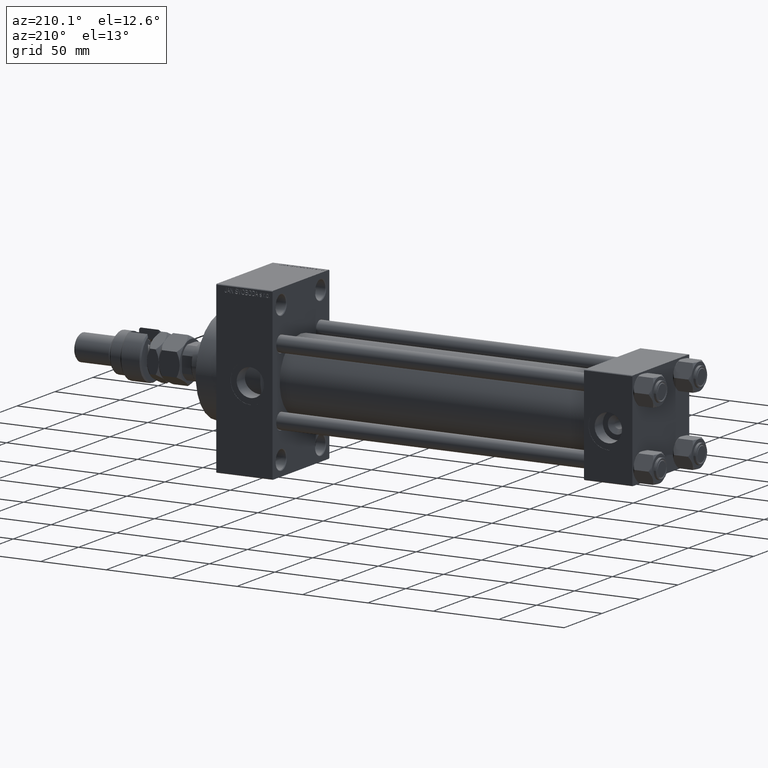
[diagram: clean part render]
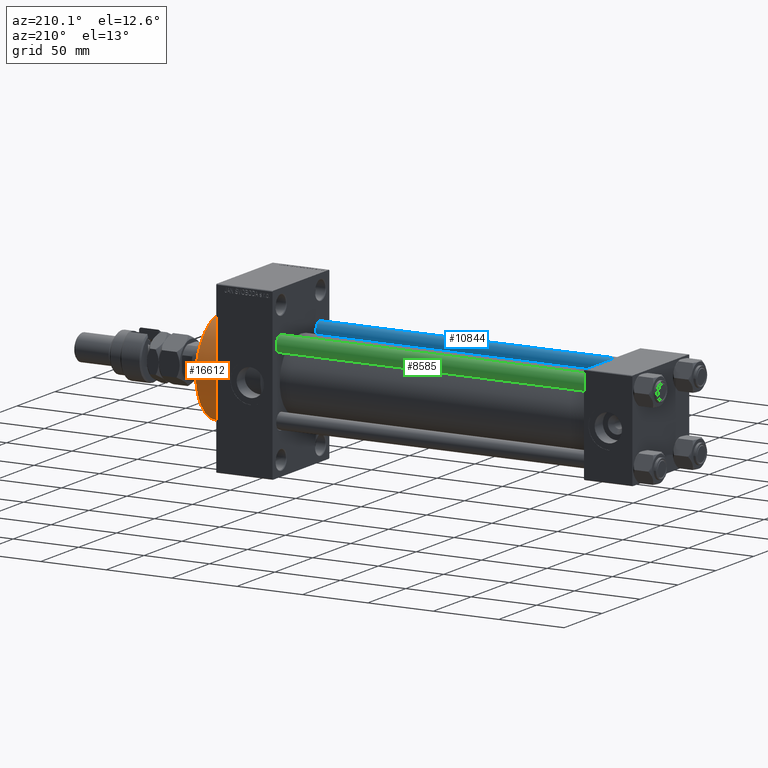
[diagram: same view with three faces highlighted in distinct colors, each labeled with its STEP entity id]
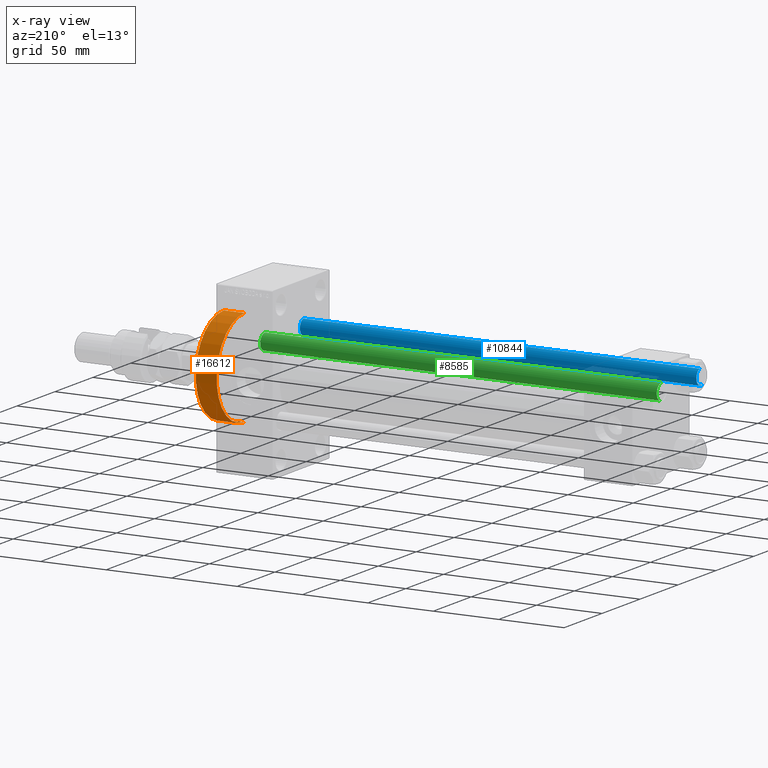
[diagram: x-ray of the same camera — body ghosted, the three highlighted faces saturated]
A machine part, auxiliary view with three faces highlighted in distinct colors.
The next image is the same camera in x-ray (body ghosted, the three faces saturated) — at least one of them is partly hidden behind the body in this view.
Their STEP definitions:

[orange] entity #16612 — the highlighted cylindrical surface (partial cylindrical patch) has radius 37 mm, axis along (-1, -0, -0).
#1893 = CARTESIAN_POINT ( 'NONE',  ( 317.9999999999999432, 0.000000000000000000, 37.00000000000000000 ) ) ;
#2523 = VECTOR ( 'NONE', #41551, 1000.000000000000000 ) ;
#3509 = ORIENTED_EDGE ( 'NONE', *, *, #35283, .F. ) ;
#3634 = DIRECTION ( 'NONE',  ( 1.000000000000000000, 0.000000000000000000, 0.000000000000000000 ) ) ;
#10791 = DIRECTION ( 'NONE',  ( 0.000000000000000000, 0.000000000000000000, -1.000000000000000000 ) ) ;
#11017 = CARTESIAN_POINT ( 'NONE',  ( 333.9999999999999432, 0.000000000000000000, 0.000000000000000000 ) ) ;
#12205 = CARTESIAN_POINT ( 'NONE',  ( 333.9999999999999432, 4.531193156845206793E-15, -37.00000000000000000 ) ) ;
#12567 = CARTESIAN_POINT ( 'NONE',  ( 333.9999999999999432, 4.531193156845206793E-15, -37.00000000000000000 ) ) ;
#14739 = CARTESIAN_POINT ( 'NONE',  ( 317.9999999999999432, 0.000000000000000000, 0.000000000000000000 ) ) ;
#16481 = DIRECTION ( 'NONE',  ( -1.000000000000000000, -0.000000000000000000, -0.000000000000000000 ) ) ;
#16612 = ADVANCED_FACE ( 'NONE', ( #46988 ), #19020, .T. ) ;
#17133 = CARTESIAN_POINT ( 'NONE',  ( 317.9999999999999432, 4.531193156845206793E-15, -37.00000000000000000 ) ) ;
#17207 = AXIS2_PLACEMENT_3D ( 'NONE', #14739, #46907, #10791 ) ;
#18589 = EDGE_CURVE ( 'NONE', #40860, #34946, #25201, .T. ) ;
#18753 = DIRECTION ( 'NONE',  ( 0.000000000000000000, 0.000000000000000000, 1.000000000000000000 ) ) ;
#19020 = CYLINDRICAL_SURFACE ( 'NONE', #32758, 37.00000000000000000 ) ;
#22146 = AXIS2_PLACEMENT_3D ( 'NONE', #11017, #3634, #43696 ) ;
#23764 = VERTEX_POINT ( 'NONE', #1893 ) ;
#25201 = LINE ( 'NONE', #12567, #2523 ) ;
#26166 = CARTESIAN_POINT ( 'NONE',  ( 333.9999999999999432, 0.000000000000000000, 0.000000000000000000 ) ) ;
#26583 = VECTOR ( 'NONE', #16481, 1000.000000000000000 ) ;
#27681 = EDGE_CURVE ( 'NONE', #40860, #35431, #27972, .T. ) ;
#27972 = CIRCLE ( 'NONE', #22146, 37.00000000000000000 ) ;
#31424 = EDGE_CURVE ( 'NONE', #34946, #23764, #41645, .T. ) ;
#32758 = AXIS2_PLACEMENT_3D ( 'NONE', #26166, #42515, #18753 ) ;
#33013 = ORIENTED_EDGE ( 'NONE', *, *, #18589, .T. ) ;
#34946 = VERTEX_POINT ( 'NONE', #17133 ) ;
#35283 = EDGE_CURVE ( 'NONE', #35431, #23764, #44440, .T. ) ;
#35431 = VERTEX_POINT ( 'NONE', #48860 ) ;
#36491 = CARTESIAN_POINT ( 'NONE',  ( 333.9999999999999432, 0.000000000000000000, 37.00000000000000000 ) ) ;
#40860 = VERTEX_POINT ( 'NONE', #12205 ) ;
#41551 = DIRECTION ( 'NONE',  ( -1.000000000000000000, -0.000000000000000000, -0.000000000000000000 ) ) ;
#41645 = CIRCLE ( 'NONE', #17207, 37.00000000000000000 ) ;
#42515 = DIRECTION ( 'NONE',  ( -1.000000000000000000, -0.000000000000000000, -0.000000000000000000 ) ) ;
#42589 = ORIENTED_EDGE ( 'NONE', *, *, #27681, .F. ) ;
#43696 = DIRECTION ( 'NONE',  ( 0.000000000000000000, 0.000000000000000000, -1.000000000000000000 ) ) ;
#43969 = EDGE_LOOP ( 'NONE', ( #42589, #33013, #45731, #3509 ) ) ;
#44440 = LINE ( 'NONE', #36491, #26583 ) ;
#45731 = ORIENTED_EDGE ( 'NONE', *, *, #31424, .T. ) ;
#46907 = DIRECTION ( 'NONE',  ( 1.000000000000000000, 0.000000000000000000, 0.000000000000000000 ) ) ;
#46988 = FACE_OUTER_BOUND ( 'NONE', #43969, .T. ) ;
#48860 = CARTESIAN_POINT ( 'NONE',  ( 333.9999999999999432, 0.000000000000000000, 37.00000000000000000 ) ) ;

[blue] entity #10844 — the highlighted cylindrical surface (edge-blend (fillet) strip) has radius 6 mm, axis along (1, 0, 0).
#211 = ORIENTED_EDGE ( 'NONE', *, *, #42955, .T. ) ;
#316 = DIRECTION ( 'NONE',  ( 0.000000000000000000, 0.000000000000000000, -1.000000000000000000 ) ) ;
#391 = ORIENTED_EDGE ( 'NONE', *, *, #26896, .T. ) ;
#3135 = AXIS2_PLACEMENT_3D ( 'NONE', #43586, #4033, #23270 ) ;
#4033 = DIRECTION ( 'NONE',  ( -0.000000000000000000, -0.000000000000000000, -1.000000000000000000 ) ) ;
#5239 = AXIS2_PLACEMENT_3D ( 'NONE', #5623, #13519, #29601 ) ;
#5623 = CARTESIAN_POINT ( 'NONE',  ( 0.000000000000000000, 0.000000000000000000, 0.4999999999999449329 ) ) ;
#6791 = ORIENTED_EDGE ( 'NONE', *, *, #29666, .T. ) ;
#7892 = VECTOR ( 'NONE', #8123, 1000.000000000000000 ) ;
#8123 = DIRECTION ( 'NONE',  ( -0.000000000000000000, -0.000000000000000000, -1.000000000000000000 ) ) ;
#10782 = AXIS2_PLACEMENT_3D ( 'NONE', #27983, #316, #20845 ) ;
#10844 = ADVANCED_FACE ( 'NONE', ( #16143 ), #27492, .T. ) ;
#13519 = DIRECTION ( 'NONE',  ( -0.000000000000000000, -0.000000000000000000, 1.000000000000000000 ) ) ;
#16143 = FACE_OUTER_BOUND ( 'NONE', #45624, .T. ) ;
#16677 = CIRCLE ( 'NONE', #10782, 6.000000000000000888 ) ;
#19026 = VERTEX_POINT ( 'NONE', #25665 ) ;
#20845 = DIRECTION ( 'NONE',  ( 1.000000000000000000, 0.000000000000000000, 0.000000000000000000 ) ) ;
#23270 = DIRECTION ( 'NONE',  ( -1.000000000000000000, 0.000000000000000000, 0.000000000000000000 ) ) ;
#24180 = CARTESIAN_POINT ( 'NONE',  ( -6.000000000000000888, 0.000000000000000000, 303.5000000000000000 ) ) ;
#25665 = CARTESIAN_POINT ( 'NONE',  ( 6.000000000000000888, 7.347880794884120722E-16, 303.5000000000000000 ) ) ;
#25912 = EDGE_CURVE ( 'NONE', #19026, #28632, #36621, .T. ) ;
#26896 = EDGE_CURVE ( 'NONE', #29769, #28632, #50683, .T. ) ;
#27492 = CYLINDRICAL_SURFACE ( 'NONE', #3135, 6.000000000000000888 ) ;
#27983 = CARTESIAN_POINT ( 'NONE',  ( 0.000000000000000000, 0.000000000000000000, 303.5000000000000000 ) ) ;
#28632 = VERTEX_POINT ( 'NONE', #32408 ) ;
#29601 = DIRECTION ( 'NONE',  ( 1.000000000000000000, 0.000000000000000000, 0.000000000000000000 ) ) ;
#29666 = EDGE_CURVE ( 'NONE', #30603, #29769, #44236, .T. ) ;
#29769 = VERTEX_POINT ( 'NONE', #45805 ) ;
#30603 = VERTEX_POINT ( 'NONE', #24180 ) ;
#32408 = CARTESIAN_POINT ( 'NONE',  ( 6.000000000000000888, 7.347880794884120722E-16, 0.4999999999999449329 ) ) ;
#36031 = CARTESIAN_POINT ( 'NONE',  ( -6.000000000000000888, 0.000000000000000000, 304.0000000000000000 ) ) ;
#36621 = LINE ( 'NONE', #48001, #45642 ) ;
#42955 = EDGE_CURVE ( 'NONE', #19026, #30603, #16677, .T. ) ;
#43532 = DIRECTION ( 'NONE',  ( -0.000000000000000000, -0.000000000000000000, -1.000000000000000000 ) ) ;
#43586 = CARTESIAN_POINT ( 'NONE',  ( 0.000000000000000000, 0.000000000000000000, 304.0000000000000000 ) ) ;
#44236 = LINE ( 'NONE', #36031, #7892 ) ;
#45624 = EDGE_LOOP ( 'NONE', ( #46387, #211, #6791, #391 ) ) ;
#45642 = VECTOR ( 'NONE', #43532, 1000.000000000000000 ) ;
#45805 = CARTESIAN_POINT ( 'NONE',  ( -6.000000000000000888, 0.000000000000000000, 0.4999999999999449329 ) ) ;
#46387 = ORIENTED_EDGE ( 'NONE', *, *, #25912, .F. ) ;
#48001 = CARTESIAN_POINT ( 'NONE',  ( 6.000000000000000888, 7.347880794884120722E-16, 304.0000000000000000 ) ) ;
#50683 = CIRCLE ( 'NONE', #5239, 6.000000000000000888 ) ;

[green] entity #8585 — the highlighted cylindrical surface (edge-blend (fillet) strip) has radius 6 mm, axis along (-1, -0, 0).
#449 = CYLINDRICAL_SURFACE ( 'NONE', #18241, 6.000000000000000888 ) ;
#711 = FACE_OUTER_BOUND ( 'NONE', #49734, .T. ) ;
#810 = AXIS2_PLACEMENT_3D ( 'NONE', #48320, #3783, #47792 ) ;
#2526 = ORIENTED_EDGE ( 'NONE', *, *, #29666, .F. ) ;
#3326 = CIRCLE ( 'NONE', #810, 6.000000000000000888 ) ;
#3783 = DIRECTION ( 'NONE',  ( -0.000000000000000000, -0.000000000000000000, 1.000000000000000000 ) ) ;
#7892 = VECTOR ( 'NONE', #8123, 1000.000000000000000 ) ;
#8123 = DIRECTION ( 'NONE',  ( -0.000000000000000000, -0.000000000000000000, -1.000000000000000000 ) ) ;
#8585 = ADVANCED_FACE ( 'NONE', ( #711 ), #449, .T. ) ;
#9403 = DIRECTION ( 'NONE',  ( -0.000000000000000000, -0.000000000000000000, -1.000000000000000000 ) ) ;
#13576 = DIRECTION ( 'NONE',  ( 0.000000000000000000, 0.000000000000000000, -1.000000000000000000 ) ) ;
#18241 = AXIS2_PLACEMENT_3D ( 'NONE', #32853, #9403, #49221 ) ;
#19026 = VERTEX_POINT ( 'NONE', #25665 ) ;
#24180 = CARTESIAN_POINT ( 'NONE',  ( -6.000000000000000888, 0.000000000000000000, 303.5000000000000000 ) ) ;
#25165 = CARTESIAN_POINT ( 'NONE',  ( 0.000000000000000000, 0.000000000000000000, 303.5000000000000000 ) ) ;
#25665 = CARTESIAN_POINT ( 'NONE',  ( 6.000000000000000888, 7.347880794884120722E-16, 303.5000000000000000 ) ) ;
#25912 = EDGE_CURVE ( 'NONE', #19026, #28632, #36621, .T. ) ;
#26348 = ORIENTED_EDGE ( 'NONE', *, *, #40694, .T. ) ;
#28632 = VERTEX_POINT ( 'NONE', #32408 ) ;
#29234 = ORIENTED_EDGE ( 'NONE', *, *, #48080, .T. ) ;
#29659 = DIRECTION ( 'NONE',  ( 1.000000000000000000, 0.000000000000000000, 0.000000000000000000 ) ) ;
#29666 = EDGE_CURVE ( 'NONE', #30603, #29769, #44236, .T. ) ;
#29769 = VERTEX_POINT ( 'NONE', #45805 ) ;
#30603 = VERTEX_POINT ( 'NONE', #24180 ) ;
#32408 = CARTESIAN_POINT ( 'NONE',  ( 6.000000000000000888, 7.347880794884120722E-16, 0.4999999999999449329 ) ) ;
#32853 = CARTESIAN_POINT ( 'NONE',  ( 0.000000000000000000, 0.000000000000000000, 304.0000000000000000 ) ) ;
#36031 = CARTESIAN_POINT ( 'NONE',  ( -6.000000000000000888, 0.000000000000000000, 304.0000000000000000 ) ) ;
#36621 = LINE ( 'NONE', #48001, #45642 ) ;
#39321 = CIRCLE ( 'NONE', #40143, 6.000000000000000888 ) ;
#40143 = AXIS2_PLACEMENT_3D ( 'NONE', #25165, #13576, #29659 ) ;
#40694 = EDGE_CURVE ( 'NONE', #30603, #19026, #39321, .T. ) ;
#42199 = ORIENTED_EDGE ( 'NONE', *, *, #25912, .T. ) ;
#43532 = DIRECTION ( 'NONE',  ( -0.000000000000000000, -0.000000000000000000, -1.000000000000000000 ) ) ;
#44236 = LINE ( 'NONE', #36031, #7892 ) ;
#45642 = VECTOR ( 'NONE', #43532, 1000.000000000000000 ) ;
#45805 = CARTESIAN_POINT ( 'NONE',  ( -6.000000000000000888, 0.000000000000000000, 0.4999999999999449329 ) ) ;
#47792 = DIRECTION ( 'NONE',  ( 1.000000000000000000, 0.000000000000000000, 0.000000000000000000 ) ) ;
#48001 = CARTESIAN_POINT ( 'NONE',  ( 6.000000000000000888, 7.347880794884120722E-16, 304.0000000000000000 ) ) ;
#48080 = EDGE_CURVE ( 'NONE', #28632, #29769, #3326, .T. ) ;
#48320 = CARTESIAN_POINT ( 'NONE',  ( 0.000000000000000000, 0.000000000000000000, 0.4999999999999449329 ) ) ;
#49221 = DIRECTION ( 'NONE',  ( -1.000000000000000000, 0.000000000000000000, 0.000000000000000000 ) ) ;
#49734 = EDGE_LOOP ( 'NONE', ( #26348, #42199, #29234, #2526 ) ) ;